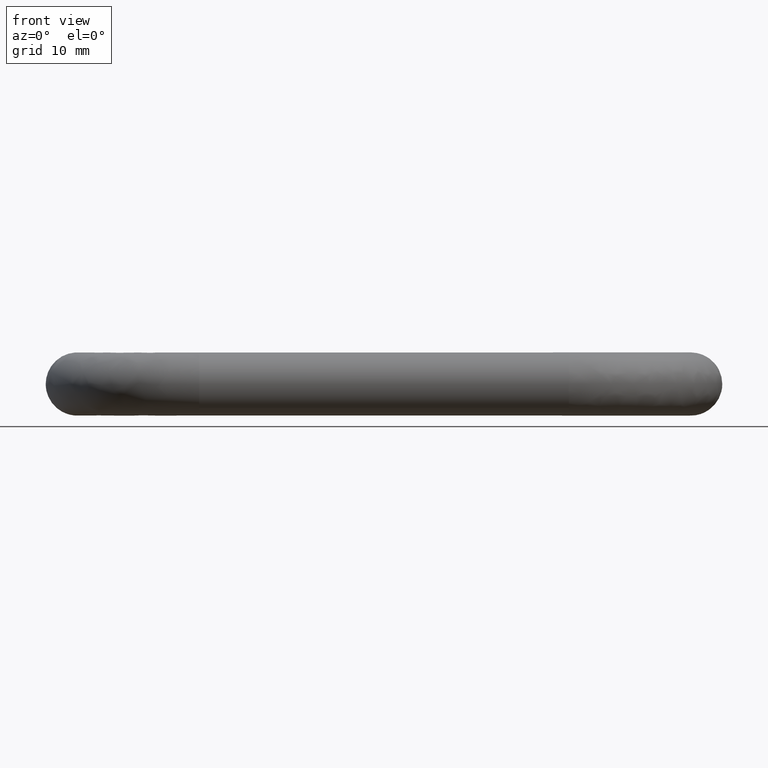
[diagram: clean part render]
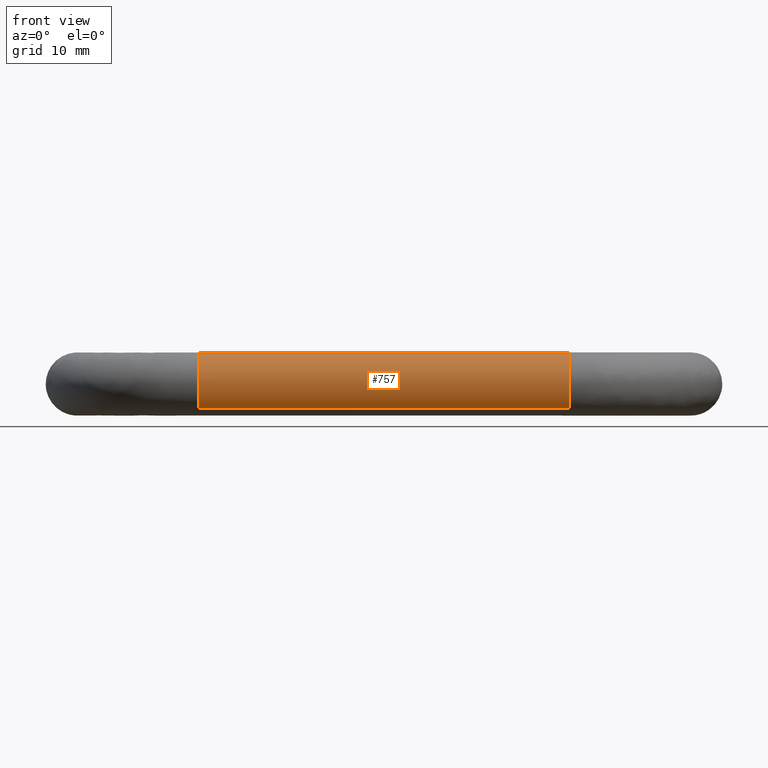
[diagram: same view with one face highlighted and labeled with its STEP entity id]
A machine part, front view. The second image highlights one B-rep face of the part: STEP entity #757.
In plain terms, the highlighted face is a freeform B-spline surface patch.
Its self-contained STEP definition (entity closure, byte-faithful):
#640=CARTESIAN_POINT('',(12.474999999995534,-24.078439661960871,2.527062628673018));
#641=CARTESIAN_POINT('',(12.474999999995530,-24.150763108693951,2.596366645175011));
#642=CARTESIAN_POINT('',(12.474999999995530,-24.226931830844361,2.661420879600109));
#643=CARTESIAN_POINT('',(12.474999999995532,-26.888352710444465,4.934489048755750));
#644=CARTESIAN_POINT('',(12.474999999995530,-29.161420879600112,2.273068169155640));
#645=CARTESIAN_POINT('',(12.474999999995532,-31.434489048755751,-0.388352710444469));
#646=CARTESIAN_POINT('',(12.474999999995530,-28.773068169155639,-2.661420879600109));
#647=CARTESIAN_POINT('',(55.550625000183146,-24.078439661960871,2.527062628673018));
#648=CARTESIAN_POINT('',(55.550625000183146,-24.150763108693944,2.596366645175011));
#649=CARTESIAN_POINT('',(55.550625000183153,-24.226931830844350,2.661420879600109));
#650=CARTESIAN_POINT('',(55.550625000183146,-26.888352710444465,4.934489048755750));
#651=CARTESIAN_POINT('',(55.550625000183153,-29.161420879600101,2.273068169155640));
#652=CARTESIAN_POINT('',(55.550625000183146,-31.434489048755736,-0.388352710444469));
#653=CARTESIAN_POINT('',(55.550625000183153,-28.773068169155628,-2.661420879600109));
#661=(BOUNDED_SURFACE()B_SPLINE_SURFACE(2,1,((#640,#647),(#641,#648),(#642,#649),(#643,#650),(#644,#651),(#645,#652),(#646,#653)),.UNSPECIFIED.,.F.,.F.,.U.)B_SPLINE_SURFACE_WITH_KNOTS((3,2,2,3),(2,2),(0.0,0.231959594928934,6.030949468152264,11.829939341375599),(0.0,43.075625000187607),.UNSPECIFIED.)GEOMETRIC_REPRESENTATION_ITEM()RATIONAL_B_SPLINE_SURFACE(((0.977505800795127,0.977505800795127),(0.988284271247462,0.988284271247462),(1.0,1.0),(0.707106781186548,0.707106781186548),(1.0,1.0),(0.707106781186548,0.707106781186548),(1.0,1.0)))REPRESENTATION_ITEM('')SURFACE());
#662=CARTESIAN_POINT('',(54.500000000053802,-26.587955334720451,3.498894662474738));
#663=VERTEX_POINT('',#662);
#664=CARTESIAN_POINT('',(54.499999999999993,-24.078439901263589,2.527062857985050));
#665=VERTEX_POINT('',#664);
#666=CARTESIAN_POINT('',(54.500000000053802,-26.587955334720448,3.498894662474738));
#667=CARTESIAN_POINT('',(54.500000000000007,-26.543984613100921,3.500000000000000));
#668=CARTESIAN_POINT('',(54.500000000000000,-26.500000000000000,3.500000000000000));
#669=CARTESIAN_POINT('',(54.500000000000000,-25.093766253105734,3.500000000000000));
#670=CARTESIAN_POINT('',(54.499999999999993,-24.078439901263582,2.527062857985051));
#678=(BOUNDED_CURVE()B_SPLINE_CURVE(2,(#666,#667,#668,#669,#670),.UNSPECIFIED.,.F.,.U.)B_SPLINE_CURVE_WITH_KNOTS((3,2,3),(0.745579891702918,0.750000000000000,0.871783468984008),.UNSPECIFIED.)CURVE()GEOMETRIC_REPRESENTATION_ITEM()RATIONAL_B_SPLINE_CURVE((0.989826157530386,0.994821521013454,1.0,0.857321791084023,0.853650360009747))REPRESENTATION_ITEM(''));
#679=EDGE_CURVE('',#663,#665,#678,.T.);
#680=ORIENTED_EDGE('',*,*,#679,.T.);
#681=CARTESIAN_POINT('',(13.500000000029130,-24.078439724854910,2.527062688919497));
#682=VERTEX_POINT('',#681);
#683=CARTESIAN_POINT('',(13.500000000029130,-24.078439724854910,2.527062688919497));
#684=CARTESIAN_POINT('',(54.499999999999993,-24.078439901263589,2.527062857985050));
#685=QUASI_UNIFORM_CURVE('',1,(#683,#684),.UNSPECIFIED.,.F.,.U.);
#686=EDGE_CURVE('',#682,#665,#685,.T.);
#687=ORIENTED_EDGE('',*,*,#686,.F.);
#688=CARTESIAN_POINT('',(13.500000000000000,-30.0,0.0));
#689=VERTEX_POINT('',#688);
#690=CARTESIAN_POINT('',(13.500000000000000,-30.0,0.0));
#691=CARTESIAN_POINT('',(13.500000000000000,-29.999999999999993,3.500000000000000));
#692=CARTESIAN_POINT('',(13.500000000000000,-26.500000000000000,3.500000000000000));
#693=CARTESIAN_POINT('',(13.500000000000004,-25.093765969365496,3.500000000000000));
#694=CARTESIAN_POINT('',(13.500000000029130,-24.078439724854906,2.527062688919497));
#702=(BOUNDED_CURVE()B_SPLINE_CURVE(2,(#690,#691,#692,#693,#694),.UNSPECIFIED.,.F.,.U.)B_SPLINE_CURVE_WITH_KNOTS((3,2,3),(0.500000000000000,0.750000000000000,0.871783490050663),.UNSPECIFIED.)CURVE()GEOMETRIC_REPRESENTATION_ITEM()RATIONAL_B_SPLINE_CURVE((1.0,0.707106781186547,1.0,0.857321766402901,0.853650358739550))REPRESENTATION_ITEM(''));
#703=EDGE_CURVE('',#689,#682,#702,.T.);
#704=ORIENTED_EDGE('',*,*,#703,.F.);
#705=CARTESIAN_POINT('',(13.500000000000000,-28.773066939401790,-2.661421929908141));
#706=VERTEX_POINT('',#705);
#707=CARTESIAN_POINT('',(13.499999999999996,-28.773066939401783,-2.661421929908142));
#708=CARTESIAN_POINT('',(13.499999999999996,-29.999999999999993,-1.613523080964714));
#709=CARTESIAN_POINT('',(13.500000000000000,-30.0,0.0));
#717=(BOUNDED_CURVE()B_SPLINE_CURVE(2,(#707,#708,#709),.UNSPECIFIED.,.F.,.U.)B_SPLINE_CURVE_WITH_KNOTS((3,3),(0.363143091521298,0.500000000000000),.UNSPECIFIED.)CURVE()GEOMETRIC_REPRESENTATION_ITEM()RATIONAL_B_SPLINE_CURVE((0.854871047159077,0.839662158235259,1.0))REPRESENTATION_ITEM(''));
#718=EDGE_CURVE('',#706,#689,#717,.T.);
#719=ORIENTED_EDGE('',*,*,#718,.F.);
#720=CARTESIAN_POINT('',(54.499999999999993,-28.773066924043150,-2.661421943025630));
#721=VERTEX_POINT('',#720);
#722=CARTESIAN_POINT('',(13.500000000000000,-28.773066939401790,-2.661421929908141));
#723=CARTESIAN_POINT('',(54.499999999999993,-28.773066924043150,-2.661421943025630));
#724=QUASI_UNIFORM_CURVE('',1,(#722,#723),.UNSPECIFIED.,.F.,.U.);
#725=EDGE_CURVE('',#706,#721,#724,.T.);
#726=ORIENTED_EDGE('',*,*,#725,.T.);
#727=CARTESIAN_POINT('',(54.500000000000000,-30.0,0.0));
#728=VERTEX_POINT('',#727);
#729=CARTESIAN_POINT('',(54.499999999999986,-28.773066924043157,-2.661421943025630));
#730=CARTESIAN_POINT('',(54.500000000000000,-30.0,-1.613523093209980));
#731=CARTESIAN_POINT('',(54.500000000000000,-30.0,0.0));
#739=(BOUNDED_CURVE()B_SPLINE_CURVE(2,(#729,#730,#731),.UNSPECIFIED.,.F.,.U.)B_SPLINE_CURVE_WITH_KNOTS((3,3),(0.363143090649202,0.500000000000000),.UNSPECIFIED.)CURVE()GEOMETRIC_REPRESENTATION_ITEM()RATIONAL_B_SPLINE_CURVE((0.854871047352908,0.839662157213535,1.0))REPRESENTATION_ITEM(''));
#740=EDGE_CURVE('',#721,#728,#739,.T.);
#741=ORIENTED_EDGE('',*,*,#740,.T.);
#742=CARTESIAN_POINT('',(54.500000000000000,-30.0,0.0));
#743=CARTESIAN_POINT('',(54.500000000000007,-30.000000000000004,3.413122565327120));
#744=CARTESIAN_POINT('',(54.500000000053795,-26.587955334720455,3.498894662474738));
#752=(BOUNDED_CURVE()B_SPLINE_CURVE(2,(#742,#743,#744),.UNSPECIFIED.,.F.,.U.)B_SPLINE_CURVE_WITH_KNOTS((3,3),(0.500000000000000,0.745579891702918),.UNSPECIFIED.)CURVE()GEOMETRIC_REPRESENTATION_ITEM()RATIONAL_B_SPLINE_CURVE((1.0,0.712285260173093,0.989826157530387))REPRESENTATION_ITEM(''));
#753=EDGE_CURVE('',#728,#663,#752,.T.);
#754=ORIENTED_EDGE('',*,*,#753,.T.);
#755=EDGE_LOOP('',(#680,#687,#704,#719,#726,#741,#754));
#756=FACE_OUTER_BOUND('',#755,.T.);
#757=ADVANCED_FACE('',(#756),#661,.T.);